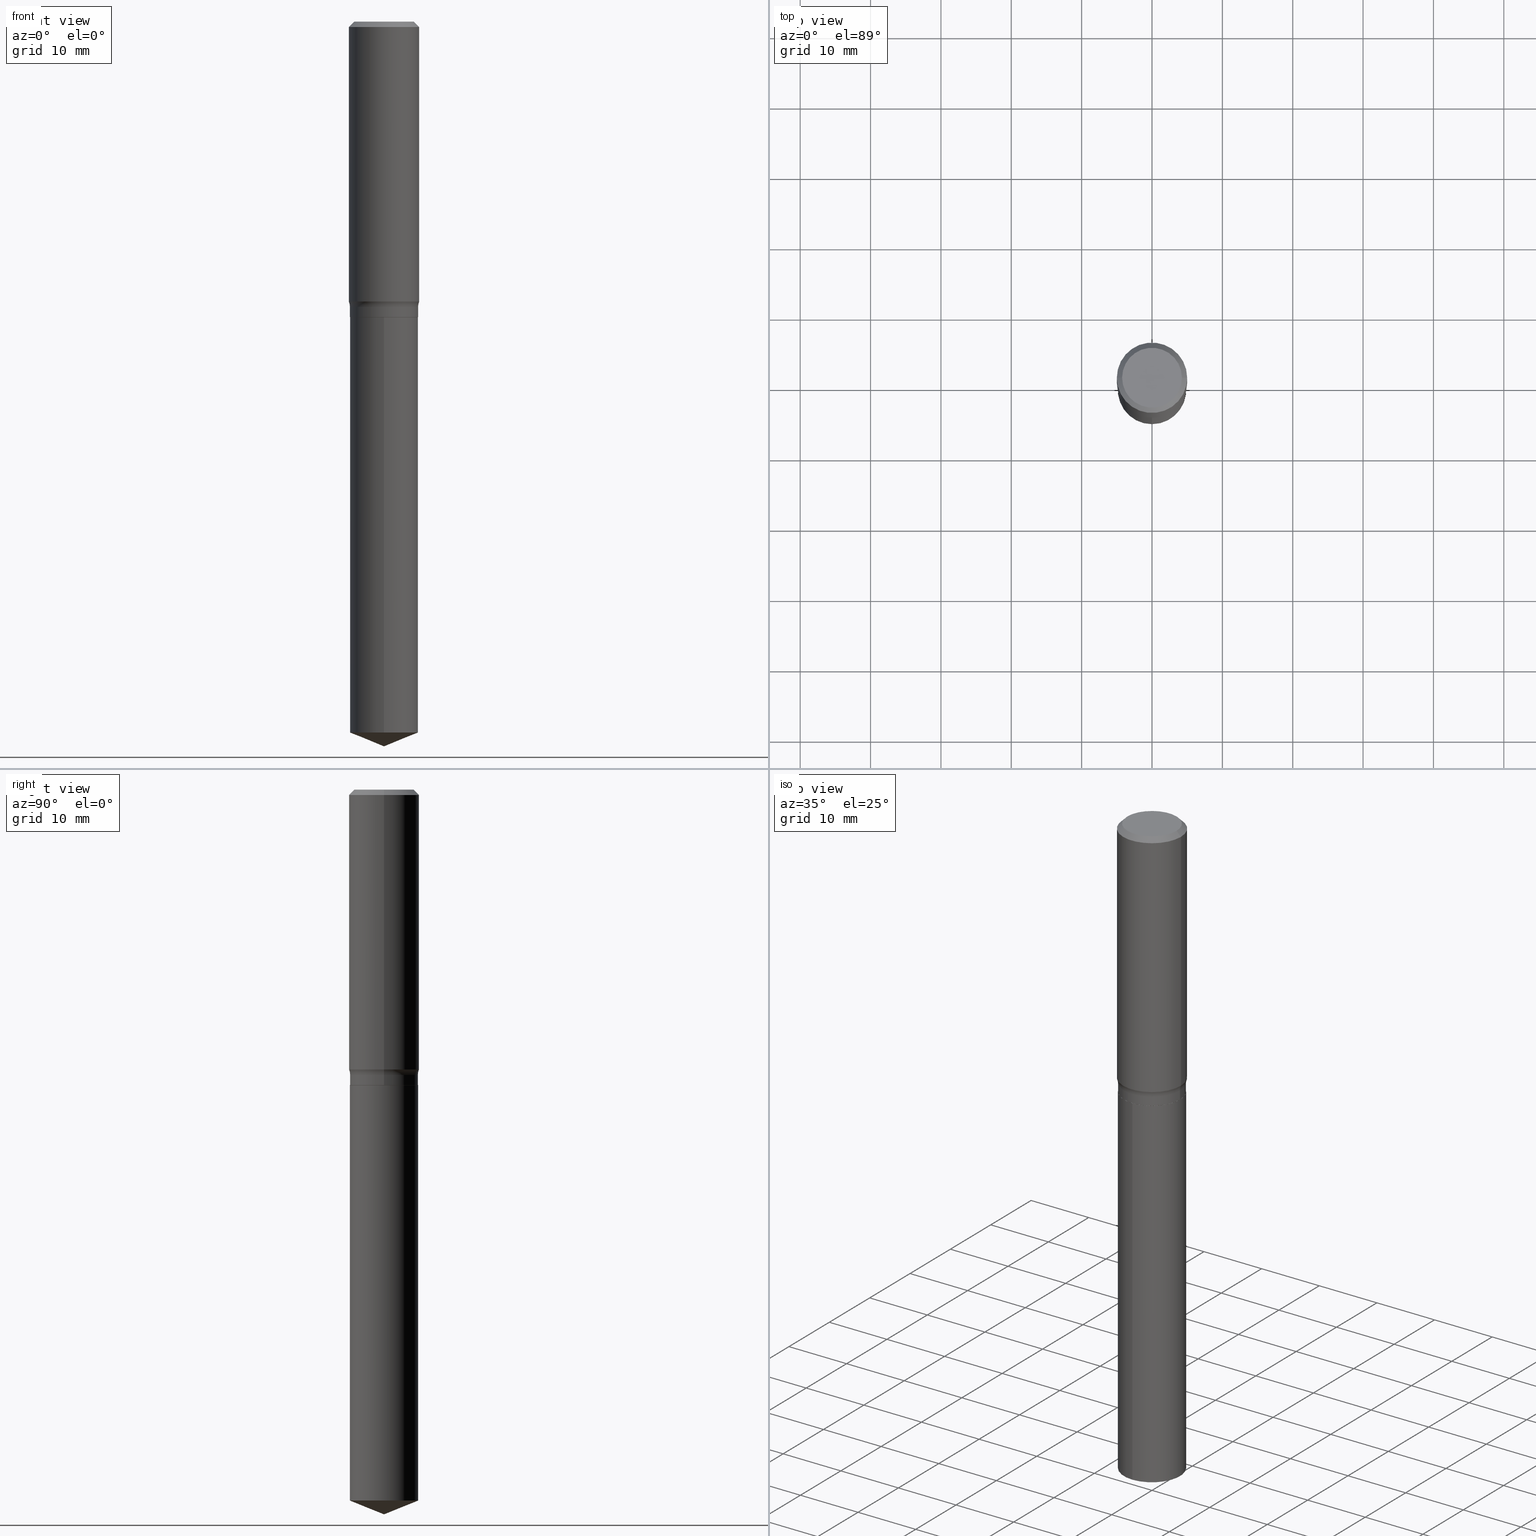
[diagram: canonical four-view strip — front | top / right | iso, engineering-drawing reading convention]
A machine part, canonical four-view strip (front | top / right | iso — engineering-drawing reading convention). The complete STEP part file that produces these views, byte-faithful:
ISO-10303-21;
HEADER;
FILE_DESCRIPTION (( 'STEP AP203' ),
    '1' );
FILE_NAME ('69290.STEP',
    '2024-04-19T17:41:25',
    ( '' ),
    ( '' ),
    'SwSTEP 2.0',
    'SolidWorks 2023',
    '' );
FILE_SCHEMA (( 'CONFIG_CONTROL_DESIGN' ));
ENDSEC;

DATA;
#1 = DIRECTION ( 'NONE',  ( -2.445507172700810819E-29, 3.491426395809013811E-15, 1.000000000000000000 ) ) ;
#2 = DIRECTION ( 'NONE',  ( -6.982962677686265922E-15, -1.000000000000000000, 2.861322852751257324E-15 ) ) ;
#3 = ORIENTED_EDGE ( 'NONE', *, *, #430, .F. ) ;
#4 = CIRCLE ( 'NONE', #354, 0.1968500000000002192 ) ;
#5 = APPROVAL_ROLE ( '' ) ;
#6 = ORIENTED_EDGE ( 'NONE', *, *, #413, .T. ) ;
#7 = APPROVAL_PERSON_ORGANIZATION ( #206, #304, #367 ) ;
#8 = ADVANCED_FACE ( 'NONE', ( #258 ), #399, .T. ) ;
#9 = ORIENTED_EDGE ( 'NONE', *, *, #376, .T. ) ;
#10 = EDGE_LOOP ( 'NONE', ( #156, #9, #113, #239 ) ) ;
#11 = VERTEX_POINT ( 'NONE', #175 ) ;
#12 = AXIS2_PLACEMENT_3D ( 'NONE', #151, #449, #105 ) ;
#13 = ADVANCED_FACE ( 'NONE', ( #326 ), #81, .T. ) ;
#14 = CARTESIAN_POINT ( 'NONE',  ( -1.001697619218021790E-46, 1.430158722866389718E-32, 4.096137381448108366E-18 ) ) ;
#15 = LENGTH_MEASURE_WITH_UNIT ( LENGTH_MEASURE( 0.02539999999999999897 ), #481 );
#16 = DATE_TIME_ROLE ( 'classification_date' ) ;
#17 = LINE ( 'NONE', #294, #383 ) ;
#18 = DIRECTION ( 'NONE',  ( -2.445468806185136597E-29, 3.491481338843145583E-15, 1.000000000000000000 ) ) ;
#19 = PERSON_AND_ORGANIZATION ( #106, #223 ) ;
#20 = DIRECTION ( 'NONE',  ( -1.000000000000000000, 7.105427357600997914E-15, 0.000000000000000000 ) ) ;
#21 = CYLINDRICAL_SURFACE ( 'NONE', #232, 0.1909500000000000086 ) ;
#22 = VECTOR ( 'NONE', #38, 39.37007874015748143 ) ;
#23 = COORDINATED_UNIVERSAL_TIME_OFFSET ( 5, 0, .BEHIND. ) ;
#24 = VERTEX_POINT ( 'NONE', #395 ) ;
#25 = EDGE_CURVE ( 'NONE', #348, #227, #250, .T. ) ;
#26 = DIRECTION ( 'NONE',  ( -2.445468806185136597E-29, 3.491481338843145583E-15, 1.000000000000000000 ) ) ;
#27 = CARTESIAN_POINT ( 'NONE',  ( 0.1904500000000000082, -7.102720487608605521E-15, -1.653399999999999981 ) ) ;
#28 = ADVANCED_BREP_SHAPE_REPRESENTATION ( '69290', ( #329, #488, #456 ), #197 ) ;
#29 = EDGE_CURVE ( 'NONE', #188, #36, #170, .T. ) ;
#30 = DIRECTION ( 'NONE',  ( 1.000000000000000000, -6.982962677686264344E-15, 0.000000000000000000 ) ) ;
#31 = DIRECTION ( 'NONE',  ( 0.7071067811865453523, -7.319954787623248157E-15, -0.7071067811865496822 ) ) ;
#32 = AXIS2_PLACEMENT_3D ( 'NONE', #124, #88, #393 ) ;
#33 = LINE ( 'NONE', #193, #22 ) ;
#34 = DIRECTION ( 'NONE',  ( -6.982962677686265922E-15, -1.000000000000000000, 2.861322852751257324E-15 ) ) ;
#35 = CARTESIAN_POINT ( 'NONE',  ( 3.902234574029621583E-29, -5.571356772392006582E-15, -1.595699999999999896 ) ) ;
#36 = VERTEX_POINT ( 'NONE', #204 ) ;
#37 = FACE_OUTER_BOUND ( 'NONE', #10, .T. ) ;
#38 = DIRECTION ( 'NONE',  ( -2.445468806185136877E-29, 3.491481338843145188E-15, 1.000000000000000000 ) ) ;
#39 = CC_DESIGN_PERSON_AND_ORGANIZATION_ASSIGNMENT ( #19, #316, ( #190 ) ) ;
#40 = PERSON_AND_ORGANIZATION ( #106, #223 ) ;
#41 = ORIENTED_EDGE ( 'NONE', *, *, #183, .F. ) ;
#42 = AXIS2_PLACEMENT_3D ( 'NONE', #404, #486, #71 ) ;
#43 = EDGE_LOOP ( 'NONE', ( #461, #44, #82, #424 ) ) ;
#44 = ORIENTED_EDGE ( 'NONE', *, *, #352, .T. ) ;
#45 = ORIENTED_EDGE ( 'NONE', *, *, #327, .T. ) ;
#46 = EDGE_CURVE ( 'NONE', #163, #402, #287, .T. ) ;
#47 = CARTESIAN_POINT ( 'NONE',  ( 9.916404714907756114E-29, -1.415791572063081844E-14, -4.054999999999999716 ) ) ;
#48 = CIRCLE ( 'NONE', #332, 0.1968500000000000250 ) ;
#49 = CARTESIAN_POINT ( 'NONE',  ( -1.333396723304151920E-15, -0.1909500000000057818, -1.653399999999999093 ) ) ;
#50 = SECURITY_CLASSIFICATION ( '', '', #473 ) ;
#51 = DATE_TIME_ROLE ( 'creation_date' ) ;
#52 = ORIENTED_EDGE ( 'NONE', *, *, #327, .F. ) ;
#53 = FACE_OUTER_BOUND ( 'NONE', #440, .T. ) ;
#54 = PERSON_AND_ORGANIZATION_ROLE ( 'design_supplier' ) ;
#55 = EDGE_LOOP ( 'NONE', ( #244, #45, #418, #3 ) ) ;
#56 = CARTESIAN_POINT ( 'NONE',  ( 9.727800187207764451E-29, -1.388846549377898755E-14, -3.977851192176776962 ) ) ;
#57 = EDGE_CURVE ( 'NONE', #417, #310, #115, .T. ) ;
#58 = DIRECTION ( 'NONE',  ( -2.445468806185136597E-29, 3.491481338843145583E-15, 1.000000000000000000 ) ) ;
#59 = CARTESIAN_POINT ( 'NONE',  ( 0.2689500000000000224, -7.449424584555728752E-15, -1.595699999999999896 ) ) ;
#60 = EDGE_LOOP ( 'NONE', ( #485, #120, #245 ) ) ;
#61 = CARTESIAN_POINT ( 'NONE',  ( -0.1968500000000000250, 1.271501487869850120E-15, -0.02952750000000019942 ) ) ;
#62 = LINE ( 'NONE', #181, #346 ) ;
#63 = ADVANCED_FACE ( 'NONE', ( #167 ), #202, .T. ) ;
#64 = FACE_OUTER_BOUND ( 'NONE', #43, .T. ) ;
#65 = AXIS2_PLACEMENT_3D ( 'NONE', #405, #409, #451 ) ;
#66 = PLANE ( 'NONE',  #150 ) ;
#67 = ORIENTED_EDGE ( 'NONE', *, *, #46, .T. ) ;
#68 = DIRECTION ( 'NONE',  ( 1.000000000000000000, -6.982962677686265133E-15, 4.883557194083111780E-29 ) ) ;
#69 = ORIENTED_EDGE ( 'NONE', *, *, #331, .F. ) ;
#70 = EDGE_CURVE ( 'NONE', #173, #306, #98, .T. ) ;
#71 = DIRECTION ( 'NONE',  ( -6.982962677686265922E-15, -1.000000000000000000, 3.498761904101816908E-15 ) ) ;
#72 = AXIS2_PLACEMENT_3D ( 'NONE', #467, #207, #20 ) ;
#73 = VECTOR ( 'NONE', #255, 39.37007874015748143 ) ;
#74 = CARTESIAN_POINT ( 'NONE',  ( 9.916531585301787226E-29, -1.415773403500555029E-14, -4.054999999999999716 ) ) ;
#75 = PRODUCT_DEFINITION ( 'UNKNOWN', '', #190, #468 ) ;
#76 = COORDINATED_UNIVERSAL_TIME_OFFSET ( 5, 0, .BEHIND. ) ;
#77 = ORIENTED_EDGE ( 'NONE', *, *, #149, .F. ) ;
#78 = DIRECTION ( 'NONE',  ( 1.000000000000000000, 0.000000000000000000, 0.000000000000000000 ) ) ;
#79 = ORIENTED_EDGE ( 'NONE', *, *, #438, .F. ) ;
#80 = UNCERTAINTY_MEASURE_WITH_UNIT (LENGTH_MEASURE( 1.000000000000000082E-05 ), #165, 'distance_accuracy_value', 'NONE');
#81 = CONICAL_SURFACE ( 'NONE', #230, 97.44436430772871915, 1.186823891356145966 ) ;
#82 = ORIENTED_EDGE ( 'NONE', *, *, #257, .F. ) ;
#83 = ORIENTED_EDGE ( 'NONE', *, *, #331, .T. ) ;
#84 = CC_DESIGN_DATE_AND_TIME_ASSIGNMENT ( #364, #51, ( #75 ) ) ;
#85 = ORIENTED_EDGE ( 'NONE', *, *, #271, .F. ) ;
#86 = DIRECTION ( 'NONE',  ( 2.445468806185136597E-29, -3.491481338843145583E-15, -1.000000000000000000 ) ) ;
#87 = VECTOR ( 'NONE', #253, 39.37007874015748143 ) ;
#88 = DIRECTION ( 'NONE',  ( -2.445468806185136597E-29, 3.491481338843145583E-15, 1.000000000000000000 ) ) ;
#89 = ORIENTED_EDGE ( 'NONE', *, *, #430, .T. ) ;
#90 = CARTESIAN_POINT ( 'NONE',  ( 4.043338124146504977E-29, -5.772815245643255982E-15, -1.653399999999999981 ) ) ;
#91 = APPROVAL_ROLE ( '' ) ;
#92 = DIRECTION ( 'NONE',  ( -2.445468806185136597E-29, 3.491481338843145583E-15, 1.000000000000000000 ) ) ;
#93 = DIRECTION ( 'NONE',  ( -2.438088387897960049E-29, 3.491481338843145188E-15, 1.000000000000000000 ) ) ;
#94 = CALENDAR_DATE ( 2024, 19, 4 ) ;
#95 = CARTESIAN_POINT ( 'NONE',  ( 7.220858017463210361E-31, -1.030947152326916856E-16, -0.02952750000000019942 ) ) ;
#96 = DIRECTION ( 'NONE',  ( -2.445507172700810819E-29, 3.491426395809013811E-15, 1.000000000000000000 ) ) ;
#97 = CIRCLE ( 'NONE', #379, 0.1909500000000000086 ) ;
#98 = LINE ( 'NONE', #359, #284 ) ;
#99 = DIRECTION ( 'NONE',  ( 1.000000000000000000, -6.982962677686266711E-15, 0.000000000000000000 ) ) ;
#100 = APPLICATION_PROTOCOL_DEFINITION ( 'international standard', 'config_control_design', 1994, #186 ) ;
#101 = CARTESIAN_POINT ( 'NONE',  ( 0.000000000000000000, 0.000000000000000000, 0.000000000000000000 ) ) ;
#102 = ORIENTED_EDGE ( 'NONE', *, *, #152, .F. ) ;
#103 = AXIS2_PLACEMENT_3D ( 'NONE', #123, #425, #132 ) ;
#104 = CARTESIAN_POINT ( 'NONE',  ( 0.1968500000000001915, -6.842050456385563908E-15, -1.565941135774360671 ) ) ;
#105 = DIRECTION ( 'NONE',  ( 1.000000000000000000, -6.982962677686265133E-15, 4.883557194083111780E-29 ) ) ;
#106 = PERSON ( 'UNSPECIFIED', 'UNSPECIFIED', 'UNSPECIFIED', ('UNSPECIFIED'), ('UNSPECIFIED'), ('UNSPECIFIED') ) ;
#107 = CARTESIAN_POINT ( 'NONE',  ( 3.829460199858322232E-29, -5.467454253283021511E-15, -1.565941135774360671 ) ) ;
#108 = VECTOR ( 'NONE', #442, 39.37007874015748143 ) ;
#109 = APPROVAL_PERSON_ORGANIZATION ( #325, #121, #91 ) ;
#110 = EDGE_CURVE ( 'NONE', #417, #188, #446, .T. ) ;
#111 = ORIENTED_EDGE ( 'NONE', *, *, #154, .T. ) ;
#112 = CC_DESIGN_PERSON_AND_ORGANIZATION_ASSIGNMENT ( #236, #347, ( #350 ) ) ;
#113 = ORIENTED_EDGE ( 'NONE', *, *, #266, .T. ) ;
#114 = ORIENTED_EDGE ( 'NONE', *, *, #479, .F. ) ;
#115 = CIRCLE ( 'NONE', #72, 0.07800000000000006928 ) ;
#116 = TOROIDAL_SURFACE ( 'NONE', #490, 0.2689500000000000224, 0.07800000000000002764 ) ;
#117 = EDGE_LOOP ( 'NONE', ( #281, #389, #365, #102 ) ) ;
#118 = AXIS2_PLACEMENT_3D ( 'NONE', #90, #171, #475 ) ;
#119 = ADVANCED_FACE ( 'NONE', ( #392 ), #282, .F. ) ;
#120 = ORIENTED_EDGE ( 'NONE', *, *, #149, .T. ) ;
#121 = APPROVAL ( #122, 'UNSPECIFIED' ) ;
#122 = APPROVAL_STATUS ( 'not_yet_approved' ) ;
#123 = CARTESIAN_POINT ( 'NONE',  ( 4.043338124146503856E-29, -5.772815245643255193E-15, -1.653399999999999537 ) ) ;
#124 = CARTESIAN_POINT ( 'NONE',  ( -1.001697619218021790E-46, 1.430158722866389718E-32, 4.096137381448108366E-18 ) ) ;
#125 = AXIS2_PLACEMENT_3D ( 'NONE', #127, #262, #323 ) ;
#126 = PERSON_AND_ORGANIZATION_ROLE ( 'creator' ) ;
#127 = CARTESIAN_POINT ( 'NONE',  ( 4.043338124146504977E-29, -5.772815245643255982E-15, -1.653399999999999981 ) ) ;
#128 = CIRCLE ( 'NONE', #259, 0.1909500000000000086 ) ;
#129 = FACE_OUTER_BOUND ( 'NONE', #448, .T. ) ;
#130 = CIRCLE ( 'NONE', #401, 0.07800000000000006928 ) ;
#131 = PERSON_AND_ORGANIZATION ( #106, #223 ) ;
#132 = DIRECTION ( 'NONE',  ( 6.982962677686265922E-15, 1.000000000000000000, -3.491426395809013417E-15 ) ) ;
#133 = CARTESIAN_POINT ( 'NONE',  ( -0.1673224999999999851, 1.219954130253505263E-15, 4.096137381439757534E-18 ) ) ;
#134 = SHAPE_DEFINITION_REPRESENTATION ( #321, #28 ) ;
#135 = CARTESIAN_POINT ( 'NONE',  ( 7.220858017463210361E-31, -1.030947152326916856E-16, -0.02952750000000019942 ) ) ;
#136 = DIRECTION ( 'NONE',  ( 1.000000000000000000, -6.982962677686265133E-15, 0.000000000000000000 ) ) ;
#137 = DIRECTION ( 'NONE',  ( 1.000000000000000000, -6.982962677686267499E-15, 4.876294436782262290E-29 ) ) ;
#138 = VECTOR ( 'NONE', #164, 39.37007874015748143 ) ;
#139 = FACE_OUTER_BOUND ( 'NONE', #225, .T. ) ;
#140 = AXIS2_PLACEMENT_3D ( 'NONE', #360, #441, #324 ) ;
#141 = AXIS2_PLACEMENT_3D ( 'NONE', #56, #318, #396 ) ;
#142 = CONICAL_SURFACE ( 'NONE', #374, 0.1968500000000000250, 0.7853981633974452814 ) ;
#143 = DIRECTION ( 'NONE',  ( -2.445468806185136597E-29, 3.491481338843145583E-15, 1.000000000000000000 ) ) ;
#144 = DIRECTION ( 'NONE',  ( -2.445507172700810819E-29, 3.491426395809013417E-15, 1.000000000000000000 ) ) ;
#145 = CARTESIAN_POINT ( 'NONE',  ( 0.000000000000000000, 0.000000000000000000, 0.000000000000000000 ) ) ;
#146 = EDGE_LOOP ( 'NONE', ( #200, #351 ) ) ;
#147 = CYLINDRICAL_SURFACE ( 'NONE', #65, 0.1968500000000001082 ) ;
#148 =( NAMED_UNIT ( * ) PLANE_ANGLE_UNIT ( ) SI_UNIT ( $, .RADIAN. ) );
#149 = EDGE_CURVE ( 'NONE', #348, #163, #17, .T. ) ;
#150 = AXIS2_PLACEMENT_3D ( 'NONE', #153, #375, #336 ) ;
#151 = CARTESIAN_POINT ( 'NONE',  ( 3.902234574029621583E-29, -5.571356772392006582E-15, -1.595699999999999896 ) ) ;
#152 = EDGE_CURVE ( 'NONE', #185, #36, #48, .T. ) ;
#153 = CARTESIAN_POINT ( 'NONE',  ( -5.008488096090108951E-47, 7.150793614331948590E-33, 2.048068690724054183E-18 ) ) ;
#154 = EDGE_CURVE ( 'NONE', #489, #160, #429, .T. ) ;
#155 = CARTESIAN_POINT ( 'NONE',  ( -0.1968500000000001082, 1.398703375343757985E-15, -9.682923725166787881E-30 ) ) ;
#156 = ORIENTED_EDGE ( 'NONE', *, *, #46, .F. ) ;
#157 = AXIS2_PLACEMENT_3D ( 'NONE', #363, #431, #136 ) ;
#158 = ORIENTED_EDGE ( 'NONE', *, *, #394, .F. ) ;
#159 = EDGE_LOOP ( 'NONE', ( #445, #419, #111, #299 ) ) ;
#160 = VERTEX_POINT ( 'NONE', #295 ) ;
#161 = AXIS2_PLACEMENT_3D ( 'NONE', #135, #86, #217 ) ;
#162 = APPLICATION_PROTOCOL_DEFINITION ( 'international standard', 'config_control_design', 1994, #248 ) ;
#163 = VERTEX_POINT ( 'NONE', #397 ) ;
#164 = DIRECTION ( 'NONE',  ( -6.474490251793180995E-15, -0.9271838545667867582, 0.3746065934159135136 ) ) ;
#165 =( CONVERSION_BASED_UNIT ( 'INCH', #15 ) LENGTH_UNIT ( ) NAMED_UNIT ( #361 ) );
#166 = EDGE_CURVE ( 'NONE', #459, #11, #400, .T. ) ;
#167 = FACE_OUTER_BOUND ( 'NONE', #159, .T. ) ;
#168 = DIRECTION ( 'NONE',  ( 1.000000000000000000, -6.982962677686265133E-15, 0.000000000000000000 ) ) ;
#169 = VECTOR ( 'NONE', #362, 39.37007874015748143 ) ;
#170 = LINE ( 'NONE', #330, #278 ) ;
#171 = DIRECTION ( 'NONE',  ( -2.445468806185136597E-29, 3.491481338843145583E-15, 1.000000000000000000 ) ) ;
#172 = APPROVAL_STATUS ( 'not_yet_approved' ) ;
#173 = VERTEX_POINT ( 'NONE', #319 ) ;
#174 = CARTESIAN_POINT ( 'NONE',  ( 9.727800187207764451E-29, -1.388846549377898755E-14, -3.977851192176776962 ) ) ;
#175 = CARTESIAN_POINT ( 'NONE',  ( 0.1673224999999999851, -1.300749711163072397E-15, 4.096137381456741925E-18 ) ) ;
#176 = CARTESIAN_POINT ( 'NONE',  ( 3.902234574029621583E-29, -5.571356772392006582E-15, -1.595699999999999896 ) ) ;
#177 = ADVANCED_FACE ( 'NONE', ( #302 ), #116, .F. ) ;
#178 = CARTESIAN_POINT ( 'NONE',  ( -0.1968500000000000250, -1.386571108914098219E-15, -0.02952750000000019942 ) ) ;
#179 =( NAMED_UNIT ( * ) SI_UNIT ( $, .STERADIAN. ) SOLID_ANGLE_UNIT ( ) );
#180 = CC_DESIGN_APPROVAL ( #121, ( #50 ) ) ;
#181 = CARTESIAN_POINT ( 'NONE',  ( 0.1968500000000000250, -1.453583746094017706E-15, -0.02952750000000019942 ) ) ;
#182 = ORIENTED_EDGE ( 'NONE', *, *, #408, .T. ) ;
#183 = EDGE_CURVE ( 'NONE', #160, #24, #297, .T. ) ;
#184 = DIRECTION ( 'NONE',  ( 1.000000000000000000, -6.982962677686265922E-15, 0.000000000000000000 ) ) ;
#185 = VERTEX_POINT ( 'NONE', #178 ) ;
#186 = APPLICATION_CONTEXT ( 'configuration controlled 3d designs of mechanical parts and assemblies' ) ;
#187 = DIRECTION ( 'NONE',  ( -2.445468806185136597E-29, 3.491481338843145583E-15, 1.000000000000000000 ) ) ;
#188 = VERTEX_POINT ( 'NONE', #104 ) ;
#189 = VECTOR ( 'NONE', #144, 39.37007874015748143 ) ;
#190 = PRODUCT_DEFINITION_FORMATION_WITH_SPECIFIED_SOURCE ( 'ANY', '', #350, .NOT_KNOWN. ) ;
#191 = DIRECTION ( 'NONE',  ( -2.445468806185136597E-29, 3.491481338843145583E-15, 1.000000000000000000 ) ) ;
#192 = EDGE_CURVE ( 'NONE', #489, #173, #414, .T. ) ;
#193 = CARTESIAN_POINT ( 'NONE',  ( -0.1909500000000000086, 1.356781353933911366E-15, -9.392706554841743614E-30 ) ) ;
#194 = EDGE_LOOP ( 'NONE', ( #308, #85, #195, #410 ) ) ;
#195 = ORIENTED_EDGE ( 'NONE', *, *, #479, .T. ) ;
#196 = CIRCLE ( 'NONE', #454, 0.1909500000000000086 ) ;
#197 =( GEOMETRIC_REPRESENTATION_CONTEXT ( 3 ) GLOBAL_UNCERTAINTY_ASSIGNED_CONTEXT ( ( #80 ) ) GLOBAL_UNIT_ASSIGNED_CONTEXT ( ( #165, #148, #179 ) ) REPRESENTATION_CONTEXT ( 'NONE', 'WORKASPACE' ) );
#198 = DIRECTION ( 'NONE',  ( 0.000000000000000000, 0.000000000000000000, 1.000000000000000000 ) ) ;
#199 = ORIENTED_EDGE ( 'NONE', *, *, #192, .F. ) ;
#200 = ORIENTED_EDGE ( 'NONE', *, *, #264, .T. ) ;
#201 = EDGE_LOOP ( 'NONE', ( #275, #213 ) ) ;
#202 = CONICAL_SURFACE ( 'NONE', #125, 0.1904500000000000082, 0.7853981633972775267 ) ;
#203 = CONICAL_SURFACE ( 'NONE', #482, 0.1904500000000000082, 0.7853981633972775267 ) ;
#204 = CARTESIAN_POINT ( 'NONE',  ( 0.1968500000000000250, -1.477690918335233294E-15, -0.02952750000000019942 ) ) ;
#205 = DIRECTION ( 'NONE',  ( -1.000000000000000000, 6.982962677686265922E-15, 0.000000000000000000 ) ) ;
#206 = PERSON_AND_ORGANIZATION ( #106, #223 ) ;
#207 = DIRECTION ( 'NONE',  ( 7.105427357601001859E-15, 1.000000000000000000, -3.491481338843145583E-15 ) ) ;
#208 = CARTESIAN_POINT ( 'NONE',  ( 1.356781353934008988E-15, 0.1909499999999942355, -1.653400000000000203 ) ) ;
#209 = ADVANCED_FACE ( 'NONE', ( #263 ), #341, .T. ) ;
#210 = CARTESIAN_POINT ( 'NONE',  ( -8.636334179874603903E-28, 1.232999072406469164E-13, 35.31507874015748172 ) ) ;
#211 = CARTESIAN_POINT ( 'NONE',  ( -0.1968500000000001915, -4.068750877939262145E-15, -1.565941135774360671 ) ) ;
#212 = CALENDAR_DATE ( 2024, 19, 4 ) ;
#213 = ORIENTED_EDGE ( 'NONE', *, *, #426, .T. ) ;
#214 = AXIS2_PLACEMENT_3D ( 'NONE', #270, #1, #333 ) ;
#215 = CARTESIAN_POINT ( 'NONE',  ( 0.1904500000000000082, -7.102720487608605521E-15, -1.653399999999999981 ) ) ;
#216 = LOCAL_TIME ( 13, 41, 25.00000000000000000, #76 ) ;
#217 = DIRECTION ( 'NONE',  ( -1.000000000000000000, 6.982962677686265922E-15, 0.000000000000000000 ) ) ;
#218 = PLANE ( 'NONE',  #286 ) ;
#219 = CC_DESIGN_PERSON_AND_ORGANIZATION_ASSIGNMENT ( #131, #435, ( #50 ) ) ;
#220 = LINE ( 'NONE', #484, #189 ) ;
#221 = CLOSED_SHELL ( 'NONE', ( #444, #13, #261, #229, #119 ) ) ;
#222 = AXIS2_PLACEMENT_3D ( 'NONE', #35, #187, #443 ) ;
#223 = ORGANIZATION ( 'UNSPECIFIED', 'UNSPECIFIED', '' ) ;
#224 = DIRECTION ( 'NONE',  ( -2.445468806185136597E-29, 3.491481338843145583E-15, 1.000000000000000000 ) ) ;
#225 = EDGE_LOOP ( 'NONE', ( #492, #83, #158, #41 ) ) ;
#226 = FACE_OUTER_BOUND ( 'NONE', #385, .T. ) ;
#227 = VERTEX_POINT ( 'NONE', #300 ) ;
#228 = FACE_OUTER_BOUND ( 'NONE', #201, .T. ) ;
#229 = ADVANCED_FACE ( 'NONE', ( #37 ), #338, .T. ) ;
#230 = AXIS2_PLACEMENT_3D ( 'NONE', #210, #477, #252 ) ;
#231 = CIRCLE ( 'NONE', #265, 0.1968500000000000250 ) ;
#232 = AXIS2_PLACEMENT_3D ( 'NONE', #478, #471, #251 ) ;
#233 = LINE ( 'NONE', #155, #312 ) ;
#234 = DATE_AND_TIME ( #307, #216 ) ;
#235 = CC_DESIGN_PERSON_AND_ORGANIZATION_ASSIGNMENT ( #387, #54, ( #190 ) ) ;
#236 = PERSON_AND_ORGANIZATION ( #106, #223 ) ;
#237 = ORIENTED_EDGE ( 'NONE', *, *, #266, .F. ) ;
#238 = MECHANICAL_CONTEXT ( 'NONE', #186, 'mechanical' ) ;
#239 = ORIENTED_EDGE ( 'NONE', *, *, #339, .F. ) ;
#240 = ADVANCED_FACE ( 'NONE', ( #228 ), #66, .F. ) ;
#241 = AXIS2_PLACEMENT_3D ( 'NONE', #101, #377, #483 ) ;
#242 = CC_DESIGN_APPROVAL ( #304, ( #190 ) ) ;
#243 = ORIENTED_EDGE ( 'NONE', *, *, #70, .T. ) ;
#244 = ORIENTED_EDGE ( 'NONE', *, *, #426, .F. ) ;
#245 = ORIENTED_EDGE ( 'NONE', *, *, #408, .F. ) ;
#246 = EDGE_CURVE ( 'NONE', #310, #24, #390, .T. ) ;
#247 = DIRECTION ( 'NONE',  ( 2.445468806185136597E-29, -3.491481338843145583E-15, -1.000000000000000000 ) ) ;
#248 = APPLICATION_CONTEXT ( 'configuration controlled 3d designs of mechanical parts and assemblies' ) ;
#249 = AXIS2_PLACEMENT_3D ( 'NONE', #427, #369, #366 ) ;
#250 = LINE ( 'NONE', #47, #138 ) ;
#251 = DIRECTION ( 'NONE',  ( -6.982962677686265922E-15, -1.000000000000000000, 2.861322852751257324E-15 ) ) ;
#252 = DIRECTION ( 'NONE',  ( -6.982962677686265922E-15, -1.000000000000000000, 3.498761904101816908E-15 ) ) ;
#253 = DIRECTION ( 'NONE',  ( -0.7071067811865453523, 2.468850131082234184E-15, -0.7071067811865496822 ) ) ;
#254 = CALENDAR_DATE ( 2024, 19, 4 ) ;
#255 = DIRECTION ( 'NONE',  ( 0.7071067811864267805, -2.468850131080992517E-15, 0.7071067811866682540 ) ) ;
#256 = DIRECTION ( 'NONE',  ( -6.982962677686266711E-15, -1.000000000000000000, 3.491481338843145583E-15 ) ) ;
#257 = EDGE_CURVE ( 'NONE', #36, #185, #231, .T. ) ;
#258 = FACE_OUTER_BOUND ( 'NONE', #349, .T. ) ;
#259 = AXIS2_PLACEMENT_3D ( 'NONE', #176, #26, #403 ) ;
#260 = FACE_OUTER_BOUND ( 'NONE', #55, .T. ) ;
#261 = ADVANCED_FACE ( 'NONE', ( #226 ), #472, .T. ) ;
#262 = DIRECTION ( 'NONE',  ( -2.445468806185136597E-29, 3.491481338843145583E-15, 1.000000000000000000 ) ) ;
#263 = FACE_OUTER_BOUND ( 'NONE', #117, .T. ) ;
#264 = EDGE_CURVE ( 'NONE', #422, #402, #340, .T. ) ;
#265 = AXIS2_PLACEMENT_3D ( 'NONE', #371, #224, #407 ) ;
#266 = EDGE_CURVE ( 'NONE', #227, #422, #220, .T. ) ;
#267 = LOCAL_TIME ( 13, 41, 25.00000000000000000, #289 ) ;
#268 = DIRECTION ( 'NONE',  ( -2.445468806185136597E-29, 3.491481338843145583E-15, 1.000000000000000000 ) ) ;
#269 = ORIENTED_EDGE ( 'NONE', *, *, #183, .T. ) ;
#270 = CARTESIAN_POINT ( 'NONE',  ( 4.043338124146503856E-29, -5.772815245643255193E-15, -1.653399999999999537 ) ) ;
#271 = EDGE_CURVE ( 'NONE', #188, #417, #4, .T. ) ;
#272 = CARTESIAN_POINT ( 'NONE',  ( 4.043338124146504977E-29, -5.772815245643255982E-15, -1.653399999999999981 ) ) ;
#273 = CC_DESIGN_APPROVAL ( #388, ( #75 ) ) ;
#274 = ORIENTED_EDGE ( 'NONE', *, *, #246, .F. ) ;
#275 = ORIENTED_EDGE ( 'NONE', *, *, #166, .T. ) ;
#276 = PERSON_AND_ORGANIZATION ( #106, #223 ) ;
#277 = EDGE_LOOP ( 'NONE', ( #381, #344, #386, #114 ) ) ;
#278 = VECTOR ( 'NONE', #470, 39.37007874015748143 ) ;
#279 = ORIENTED_EDGE ( 'NONE', *, *, #264, .F. ) ;
#280 = DATE_AND_TIME ( #94, #416 ) ;
#281 = ORIENTED_EDGE ( 'NONE', *, *, #352, .F. ) ;
#282 = PLANE ( 'NONE',  #103 ) ;
#283 = FACE_OUTER_BOUND ( 'NONE', #433, .T. ) ;
#284 = VECTOR ( 'NONE', #357, 39.37007874015748143 ) ;
#285 = AXIS2_PLACEMENT_3D ( 'NONE', #14, #480, #137 ) ;
#286 = AXIS2_PLACEMENT_3D ( 'NONE', #434, #93, #328 ) ;
#287 = LINE ( 'NONE', #290, #169 ) ;
#288 = LINE ( 'NONE', #61, #87 ) ;
#289 = COORDINATED_UNIVERSAL_TIME_OFFSET ( 5, 0, .BEHIND. ) ;
#290 = CARTESIAN_POINT ( 'NONE',  ( 1.356781353933951598E-15, 0.1909499999999942355, -1.653400000000000203 ) ) ;
#291 = CARTESIAN_POINT ( 'NONE',  ( 7.220858017463210361E-31, -1.030947152326916856E-16, -0.02952750000000019942 ) ) ;
#292 = ADVANCED_FACE ( 'NONE', ( #64 ), #147, .T. ) ;
#293 = APPROVAL_DATE_TIME ( #432, #304 ) ;
#294 = CARTESIAN_POINT ( 'NONE',  ( 9.916532697805385385E-29, -1.415773403500555029E-14, -4.054999999999999716 ) ) ;
#295 = CARTESIAN_POINT ( 'NONE',  ( 0.1909500000000000086, -7.104466228278026236E-15, -1.652899999999999814 ) ) ;
#296 = DIRECTION ( 'NONE',  ( -6.982962677686265922E-15, -1.000000000000000000, 2.861322852751257324E-15 ) ) ;
#297 = LINE ( 'NONE', #411, #108 ) ;
#298 = CARTESIAN_POINT ( 'NONE',  ( 4.043338124146503856E-29, -5.772815245643255193E-15, -1.653399999999999537 ) ) ;
#299 = ORIENTED_EDGE ( 'NONE', *, *, #413, .F. ) ;
#300 = CARTESIAN_POINT ( 'NONE',  ( -1.333396723304095319E-15, -0.1909500000000139142, -3.977851192176776518 ) ) ;
#301 = CIRCLE ( 'NONE', #141, 0.1909500000000000086 ) ;
#302 = FACE_OUTER_BOUND ( 'NONE', #194, .T. ) ;
#303 = DIRECTION ( 'NONE',  ( -2.445507172700810819E-29, 3.491426395809013811E-15, 1.000000000000000000 ) ) ;
#304 = APPROVAL ( #172, 'UNSPECIFIED' ) ;
#305 = DIRECTION ( 'NONE',  ( -2.445468806185136877E-29, 3.491481338843145188E-15, 1.000000000000000000 ) ) ;
#306 = VERTEX_POINT ( 'NONE', #491 ) ;
#307 = CALENDAR_DATE ( 2024, 19, 4 ) ;
#308 = ORIENTED_EDGE ( 'NONE', *, *, #57, .F. ) ;
#309 = ORIENTED_EDGE ( 'NONE', *, *, #154, .F. ) ;
#310 = VERTEX_POINT ( 'NONE', #373 ) ;
#311 = ADVANCED_FACE ( 'NONE', ( #447 ), #322, .F. ) ;
#312 = VECTOR ( 'NONE', #305, 39.37007874015748143 ) ;
#313 = APPROVAL_DATE_TIME ( #356, #121 ) ;
#314 = EDGE_LOOP ( 'NONE', ( #464, #243, #79, #309 ) ) ;
#315 = CC_DESIGN_PERSON_AND_ORGANIZATION_ASSIGNMENT ( #276, #126, ( #75 ) ) ;
#316 = PERSON_AND_ORGANIZATION_ROLE ( 'creator' ) ;
#317 = CARTESIAN_POINT ( 'NONE',  ( 3.829460199858322232E-29, -5.467454253283021511E-15, -1.565941135774360671 ) ) ;
#318 = DIRECTION ( 'NONE',  ( -2.445507172700810819E-29, 3.491426395809013811E-15, 1.000000000000000000 ) ) ;
#319 = CARTESIAN_POINT ( 'NONE',  ( -0.1904500000000000082, -4.416937378214033130E-15, -1.653399999999999981 ) ) ;
#320 = CYLINDRICAL_SURFACE ( 'NONE', #249, 0.1909500000000000086 ) ;
#321 = PRODUCT_DEFINITION_SHAPE ( 'NONE', 'NONE',  #75 ) ;
#322 = TOROIDAL_SURFACE ( 'NONE', #12, 0.2689500000000000224, 0.07800000000000002764 ) ;
#323 = DIRECTION ( 'NONE',  ( 1.000000000000000000, -6.982962677686266711E-15, 0.000000000000000000 ) ) ;
#324 = DIRECTION ( 'NONE',  ( 1.000000000000000000, -6.982962677686266711E-15, 4.876176775795935793E-29 ) ) ;
#325 = PERSON_AND_ORGANIZATION ( #106, #223 ) ;
#326 = FACE_OUTER_BOUND ( 'NONE', #60, .T. ) ;
#327 = EDGE_CURVE ( 'NONE', #11, #36, #62, .T. ) ;
#328 = DIRECTION ( 'NONE',  ( 1.000000000000000000, -6.982962677686265922E-15, 4.876176775795935793E-29 ) ) ;
#329 = MANIFOLD_SOLID_BREP ( 'Body-Move/Copy2[1]', #221 ) ;
#330 = CARTESIAN_POINT ( 'NONE',  ( 0.1968500000000001082, -1.374596203102542397E-15, 9.598753983154305062E-30 ) ) ;
#331 = EDGE_CURVE ( 'NONE', #306, #310, #33, .T. ) ;
#332 = AXIS2_PLACEMENT_3D ( 'NONE', #95, #92, #368 ) ;
#333 = DIRECTION ( 'NONE',  ( -6.982962677686265922E-15, -1.000000000000000000, 2.861322852751257324E-15 ) ) ;
#334 = CC_DESIGN_SECURITY_CLASSIFICATION ( #50, ( #190 ) ) ;
#335 = CARTESIAN_POINT ( 'NONE',  ( 3.902234574029621583E-29, -5.571356772392006582E-15, -1.595699999999999896 ) ) ;
#336 = DIRECTION ( 'NONE',  ( -1.000000000000000000, 6.982962677686265922E-15, -4.876176775795935793E-29 ) ) ;
#337 = ORIENTED_EDGE ( 'NONE', *, *, #166, .F. ) ;
#338 = CYLINDRICAL_SURFACE ( 'NONE', #214, 0.1909500000000000086 ) ;
#339 = EDGE_CURVE ( 'NONE', #402, #422, #428, .T. ) ;
#340 = CIRCLE ( 'NONE', #439, 0.1909500000000000086 ) ;
#341 = CYLINDRICAL_SURFACE ( 'NONE', #241, 0.1968500000000001082 ) ;
#342 = DIRECTION ( 'NONE',  ( -2.445507172700810819E-29, 3.491426395809013811E-15, 1.000000000000000000 ) ) ;
#343 = ORIENTED_EDGE ( 'NONE', *, *, #450, .F. ) ;
#344 = ORIENTED_EDGE ( 'NONE', *, *, #57, .T. ) ;
#345 = CLOSED_SHELL ( 'NONE', ( #370, #460, #292, #311, #421, #423, #177, #209, #8, #240, #465, #63 ) ) ;
#346 = VECTOR ( 'NONE', #31, 39.37007874015748143 ) ;
#347 = PERSON_AND_ORGANIZATION_ROLE ( 'design_owner' ) ;
#348 = VERTEX_POINT ( 'NONE', #74 ) ;
#349 = EDGE_LOOP ( 'NONE', ( #52, #337, #89, #455 ) ) ;
#350 = PRODUCT ( '69290', '69290', '', ( #238 ) ) ;
#351 = ORIENTED_EDGE ( 'NONE', *, *, #339, .T. ) ;
#352 = EDGE_CURVE ( 'NONE', #417, #185, #233, .T. ) ;
#353 = CIRCLE ( 'NONE', #32, 0.1673224999999999851 ) ;
#354 = AXIS2_PLACEMENT_3D ( 'NONE', #107, #268, #184 ) ;
#355 = LOCAL_TIME ( 13, 41, 25.00000000000000000, #476 ) ;
#356 = DATE_AND_TIME ( #254, #355 ) ;
#357 = DIRECTION ( 'NONE',  ( -0.7071067811864267805, 7.493145998869918709E-15, 0.7071067811866682540 ) ) ;
#358 = COORDINATED_UNIVERSAL_TIME_OFFSET ( 5, 0, .BEHIND. ) ;
#359 = CARTESIAN_POINT ( 'NONE',  ( -0.1904500000000000082, -4.419586605388145120E-15, -1.653399999999999981 ) ) ;
#360 = CARTESIAN_POINT ( 'NONE',  ( 0.000000000000000000, 0.000000000000000000, 0.000000000000000000 ) ) ;
#361 = DIMENSIONAL_EXPONENTS ( 1.000000000000000000, 0.000000000000000000, 0.000000000000000000, 0.000000000000000000, 0.000000000000000000, 0.000000000000000000, 0.000000000000000000 ) ;
#362 = DIRECTION ( 'NONE',  ( -2.445507172700810819E-29, 3.491426395809013417E-15, 1.000000000000000000 ) ) ;
#363 = CARTESIAN_POINT ( 'NONE',  ( 4.042115389743411055E-29, -5.771069504973833690E-15, -1.652899999999999814 ) ) ;
#364 = DATE_AND_TIME ( #212, #391 ) ;
#365 = ORIENTED_EDGE ( 'NONE', *, *, #29, .T. ) ;
#366 = DIRECTION ( 'NONE',  ( 1.000000000000000000, -6.982962677686266711E-15, 4.876176775795935793E-29 ) ) ;
#367 = APPROVAL_ROLE ( '' ) ;
#368 = DIRECTION ( 'NONE',  ( 1.000000000000000000, -6.982962677686265922E-15, 0.000000000000000000 ) ) ;
#369 = DIRECTION ( 'NONE',  ( -2.445468806185136597E-29, 3.491481338843145583E-15, 1.000000000000000000 ) ) ;
#370 = ADVANCED_FACE ( 'NONE', ( #453 ), #203, .T. ) ;
#371 = CARTESIAN_POINT ( 'NONE',  ( 7.220858017463210361E-31, -1.030947152326916856E-16, -0.02952750000000019942 ) ) ;
#372 = CIRCLE ( 'NONE', #157, 0.1909500000000000086 ) ;
#373 = CARTESIAN_POINT ( 'NONE',  ( -0.1909500000000000086, -4.314431784749008769E-15, -1.595699999999999896 ) ) ;
#374 = AXIS2_PLACEMENT_3D ( 'NONE', #291, #247, #205 ) ;
#375 = DIRECTION ( 'NONE',  ( 2.438088387897960049E-29, -3.491481338843145188E-15, -1.000000000000000000 ) ) ;
#376 = EDGE_CURVE ( 'NONE', #163, #227, #301, .T. ) ;
#377 = DIRECTION ( 'NONE',  ( -2.445468806185136597E-29, 3.491481338843145583E-15, 1.000000000000000000 ) ) ;
#378 = CARTESIAN_POINT ( 'NONE',  ( 4.043338124146504977E-29, -5.772815245643255982E-15, -1.653399999999999981 ) ) ;
#379 = AXIS2_PLACEMENT_3D ( 'NONE', #174, #96, #296 ) ;
#380 = CARTESIAN_POINT ( 'NONE',  ( 4.043338124146503856E-29, -5.772815245643255193E-15, -1.653399999999999537 ) ) ;
#381 = ORIENTED_EDGE ( 'NONE', *, *, #110, .F. ) ;
#382 = ORIENTED_EDGE ( 'NONE', *, *, #25, .T. ) ;
#383 = VECTOR ( 'NONE', #436, 39.37007874015748854 ) ;
#384 = CIRCLE ( 'NONE', #118, 0.1904500000000000082 ) ;
#385 = EDGE_LOOP ( 'NONE', ( #77, #382, #457 ) ) ;
#386 = ORIENTED_EDGE ( 'NONE', *, *, #246, .T. ) ;
#387 = PERSON_AND_ORGANIZATION ( #106, #223 ) ;
#388 = APPROVAL ( #415, 'UNSPECIFIED' ) ;
#389 = ORIENTED_EDGE ( 'NONE', *, *, #110, .T. ) ;
#390 = CIRCLE ( 'NONE', #222, 0.1909500000000000086 ) ;
#391 = LOCAL_TIME ( 13, 41, 25.00000000000000000, #358 ) ;
#392 = FACE_OUTER_BOUND ( 'NONE', #146, .T. ) ;
#393 = DIRECTION ( 'NONE',  ( 1.000000000000000000, -6.982962677686267499E-15, 4.876294436782262290E-29 ) ) ;
#394 = EDGE_CURVE ( 'NONE', #24, #310, #128, .T. ) ;
#395 = CARTESIAN_POINT ( 'NONE',  ( 0.1909500000000000086, -6.904753495696199128E-15, -1.595699999999999896 ) ) ;
#396 = DIRECTION ( 'NONE',  ( -6.982962677686265922E-15, -1.000000000000000000, 2.861322852751257324E-15 ) ) ;
#397 = CARTESIAN_POINT ( 'NONE',  ( 1.356781353934008396E-15, 0.1909499999999861031, -3.977851192176777406 ) ) ;
#398 = DIRECTION ( 'NONE',  ( 1.000000000000000000, -6.982962677686266711E-15, 0.000000000000000000 ) ) ;
#399 = CONICAL_SURFACE ( 'NONE', #161, 0.1968500000000000250, 0.7853981633974452814 ) ;
#400 = CIRCLE ( 'NONE', #285, 0.1673224999999999851 ) ;
#401 = AXIS2_PLACEMENT_3D ( 'NONE', #59, #256, #30 ) ;
#402 = VERTEX_POINT ( 'NONE', #208 ) ;
#403 = DIRECTION ( 'NONE',  ( 1.000000000000000000, -6.982962677686265133E-15, 0.000000000000000000 ) ) ;
#404 = CARTESIAN_POINT ( 'NONE',  ( -8.636334179874603903E-28, 1.232999072406469164E-13, 35.31507874015748172 ) ) ;
#405 = CARTESIAN_POINT ( 'NONE',  ( 0.000000000000000000, 0.000000000000000000, 0.000000000000000000 ) ) ;
#406 = AXIS2_PLACEMENT_3D ( 'NONE', #317, #58, #474 ) ;
#407 = DIRECTION ( 'NONE',  ( 1.000000000000000000, -6.982962677686265922E-15, 0.000000000000000000 ) ) ;
#408 = EDGE_CURVE ( 'NONE', #227, #163, #97, .T. ) ;
#409 = DIRECTION ( 'NONE',  ( -2.445468806185136597E-29, 3.491481338843145583E-15, 1.000000000000000000 ) ) ;
#410 = ORIENTED_EDGE ( 'NONE', *, *, #394, .T. ) ;
#411 = CARTESIAN_POINT ( 'NONE',  ( 0.1909500000000000086, -1.333396723304192744E-15, 9.311059553382339963E-30 ) ) ;
#412 = DIRECTION ( 'NONE',  ( -2.445468806185136597E-29, 3.491481338843145583E-15, 1.000000000000000000 ) ) ;
#413 = EDGE_CURVE ( 'NONE', #306, #160, #196, .T. ) ;
#414 = CIRCLE ( 'NONE', #420, 0.1904500000000000082 ) ;
#415 = APPROVAL_STATUS ( 'not_yet_approved' ) ;
#416 = LOCAL_TIME ( 13, 41, 25.00000000000000000, #23 ) ;
#417 = VERTEX_POINT ( 'NONE', #211 ) ;
#418 = ORIENTED_EDGE ( 'NONE', *, *, #257, .T. ) ;
#419 = ORIENTED_EDGE ( 'NONE', *, *, #450, .T. ) ;
#420 = AXIS2_PLACEMENT_3D ( 'NONE', #378, #191, #99 ) ;
#421 = ADVANCED_FACE ( 'NONE', ( #139 ), #437, .T. ) ;
#422 = VERTEX_POINT ( 'NONE', #49 ) ;
#423 = ADVANCED_FACE ( 'NONE', ( #129 ), #320, .T. ) ;
#424 = ORIENTED_EDGE ( 'NONE', *, *, #29, .F. ) ;
#425 = DIRECTION ( 'NONE',  ( 2.445507172700810538E-29, -3.491426395809013417E-15, -1.000000000000000000 ) ) ;
#426 = EDGE_CURVE ( 'NONE', #11, #459, #353, .T. ) ;
#427 = CARTESIAN_POINT ( 'NONE',  ( 0.000000000000000000, 0.000000000000000000, 0.000000000000000000 ) ) ;
#428 = CIRCLE ( 'NONE', #462, 0.1909500000000000086 ) ;
#429 = LINE ( 'NONE', #27, #73 ) ;
#430 = EDGE_CURVE ( 'NONE', #459, #185, #288, .T. ) ;
#431 = DIRECTION ( 'NONE',  ( -2.445468806185136597E-29, 3.491481338843145583E-15, 1.000000000000000000 ) ) ;
#432 = DATE_AND_TIME ( #466, #267 ) ;
#433 = EDGE_LOOP ( 'NONE', ( #182, #67, #279, #237 ) ) ;
#434 = CARTESIAN_POINT ( 'NONE',  ( 2.387212763515899356E-29, -8.144481022867982684E-15, -1.653399999999999981 ) ) ;
#435 = PERSON_AND_ORGANIZATION_ROLE ( 'classification_officer' ) ;
#436 = DIRECTION ( 'NONE',  ( 6.588037525764792868E-15, 0.9271838545667893117, 0.3746065934159070188 ) ) ;
#437 = CYLINDRICAL_SURFACE ( 'NONE', #140, 0.1909500000000000086 ) ;
#438 = EDGE_CURVE ( 'NONE', #160, #306, #372, .T. ) ;
#439 = AXIS2_PLACEMENT_3D ( 'NONE', #298, #303, #34 ) ;
#440 = EDGE_LOOP ( 'NONE', ( #199, #343 ) ) ;
#441 = DIRECTION ( 'NONE',  ( -2.445468806185136597E-29, 3.491481338843145583E-15, 1.000000000000000000 ) ) ;
#442 = DIRECTION ( 'NONE',  ( -2.445468806185136877E-29, 3.491481338843145188E-15, 1.000000000000000000 ) ) ;
#443 = DIRECTION ( 'NONE',  ( 1.000000000000000000, -6.982962677686265133E-15, 0.000000000000000000 ) ) ;
#444 = ADVANCED_FACE ( 'NONE', ( #283 ), #21, .T. ) ;
#445 = ORIENTED_EDGE ( 'NONE', *, *, #70, .F. ) ;
#446 = CIRCLE ( 'NONE', #406, 0.1968500000000002192 ) ;
#447 = FACE_OUTER_BOUND ( 'NONE', #277, .T. ) ;
#448 = EDGE_LOOP ( 'NONE', ( #69, #6, #269, #274 ) ) ;
#449 = DIRECTION ( 'NONE',  ( -2.445468806185136597E-29, 3.491481338843145583E-15, 1.000000000000000000 ) ) ;
#450 = EDGE_CURVE ( 'NONE', #173, #489, #384, .T. ) ;
#451 = DIRECTION ( 'NONE',  ( 1.000000000000000000, -6.982962677686266711E-15, 4.876176775795935793E-29 ) ) ;
#452 = CC_DESIGN_DATE_AND_TIME_ASSIGNMENT ( #280, #16, ( #50 ) ) ;
#453 = FACE_OUTER_BOUND ( 'NONE', #314, .T. ) ;
#454 = AXIS2_PLACEMENT_3D ( 'NONE', #469, #18, #168 ) ;
#455 = ORIENTED_EDGE ( 'NONE', *, *, #152, .T. ) ;
#456 = AXIS2_PLACEMENT_3D ( 'NONE', #145, #198, #78 ) ;
#457 = ORIENTED_EDGE ( 'NONE', *, *, #376, .F. ) ;
#458 = APPROVAL_DATE_TIME ( #234, #388 ) ;
#459 = VERTEX_POINT ( 'NONE', #133 ) ;
#460 = ADVANCED_FACE ( 'NONE', ( #260 ), #142, .T. ) ;
#461 = ORIENTED_EDGE ( 'NONE', *, *, #271, .T. ) ;
#462 = AXIS2_PLACEMENT_3D ( 'NONE', #380, #342, #2 ) ;
#463 = APPROVAL_PERSON_ORGANIZATION ( #40, #388, #5 ) ;
#464 = ORIENTED_EDGE ( 'NONE', *, *, #192, .T. ) ;
#465 = ADVANCED_FACE ( 'NONE', ( #53 ), #218, .F. ) ;
#466 = CALENDAR_DATE ( 2024, 19, 4 ) ;
#467 = CARTESIAN_POINT ( 'NONE',  ( -0.2689500000000000224, -3.660352084565216973E-15, -1.595699999999999896 ) ) ;
#468 = DESIGN_CONTEXT ( 'detailed design', #248, 'design' ) ;
#469 = CARTESIAN_POINT ( 'NONE',  ( 4.042115389743411055E-29, -5.771069504973833690E-15, -1.652899999999999814 ) ) ;
#470 = DIRECTION ( 'NONE',  ( -2.445468806185136877E-29, 3.491481338843145188E-15, 1.000000000000000000 ) ) ;
#471 = DIRECTION ( 'NONE',  ( -2.445507172700810819E-29, 3.491426395809013811E-15, 1.000000000000000000 ) ) ;
#472 = CONICAL_SURFACE ( 'NONE', #42, 97.44436430772871915, 1.186823891356145966 ) ;
#473 = SECURITY_CLASSIFICATION_LEVEL ( 'unclassified' ) ;
#474 = DIRECTION ( 'NONE',  ( 1.000000000000000000, -6.982962677686265922E-15, 0.000000000000000000 ) ) ;
#475 = DIRECTION ( 'NONE',  ( 1.000000000000000000, -6.982962677686266711E-15, 0.000000000000000000 ) ) ;
#476 = COORDINATED_UNIVERSAL_TIME_OFFSET ( 5, 0, .BEHIND. ) ;
#477 = DIRECTION ( 'NONE',  ( -2.445507172700810819E-29, 3.491426395809013811E-15, 1.000000000000000000 ) ) ;
#478 = CARTESIAN_POINT ( 'NONE',  ( 4.043338124146503856E-29, -5.772815245643255193E-15, -1.653399999999999537 ) ) ;
#479 = EDGE_CURVE ( 'NONE', #188, #24, #130, .T. ) ;
#480 = DIRECTION ( 'NONE',  ( -2.445468806185136597E-29, 3.491481338843145583E-15, 1.000000000000000000 ) ) ;
#481 =( LENGTH_UNIT ( ) NAMED_UNIT ( * ) SI_UNIT ( $, .METRE. ) );
#482 = AXIS2_PLACEMENT_3D ( 'NONE', #272, #412, #398 ) ;
#483 = DIRECTION ( 'NONE',  ( 1.000000000000000000, -6.982962677686266711E-15, 4.876176775795935793E-29 ) ) ;
#484 = CARTESIAN_POINT ( 'NONE',  ( -1.333396723304151920E-15, -0.1909500000000057818, -1.653399999999999093 ) ) ;
#485 = ORIENTED_EDGE ( 'NONE', *, *, #25, .F. ) ;
#486 = DIRECTION ( 'NONE',  ( -2.445507172700810819E-29, 3.491426395809013811E-15, 1.000000000000000000 ) ) ;
#487 = PRODUCT_RELATED_PRODUCT_CATEGORY ( 'detail', '', ( #350 ) ) ;
#488 = MANIFOLD_SOLID_BREP ( 'Body-Move/Copy2[2]', #345 ) ;
#489 = VERTEX_POINT ( 'NONE', #215 ) ;
#490 = AXIS2_PLACEMENT_3D ( 'NONE', #335, #143, #68 ) ;
#491 = CARTESIAN_POINT ( 'NONE',  ( -0.1909500000000000086, -4.314431784749008769E-15, -1.652899999999999814 ) ) ;
#492 = ORIENTED_EDGE ( 'NONE', *, *, #438, .T. ) ;
ENDSEC;
END-ISO-10303-21;
